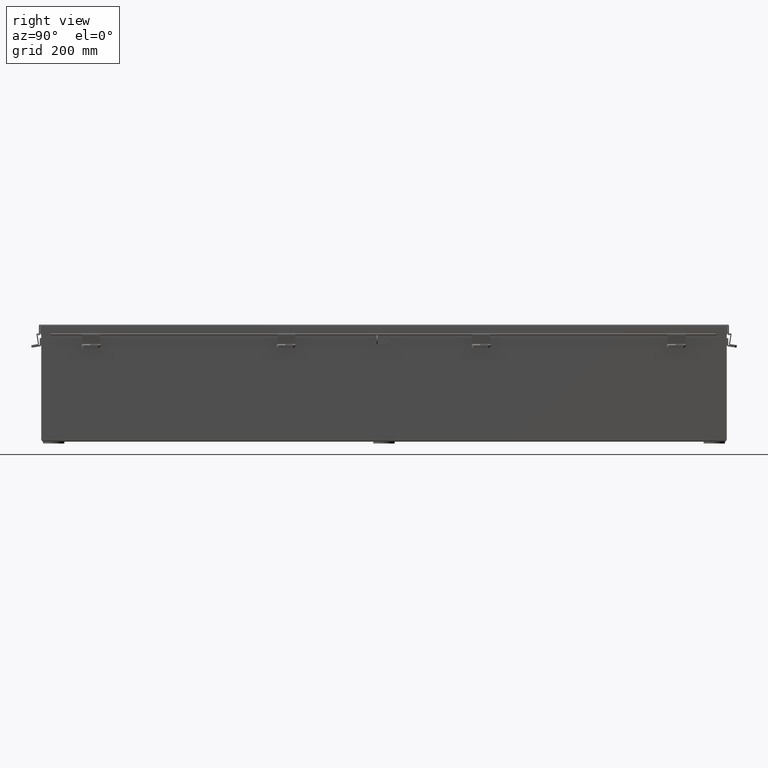
[diagram: clean part render]
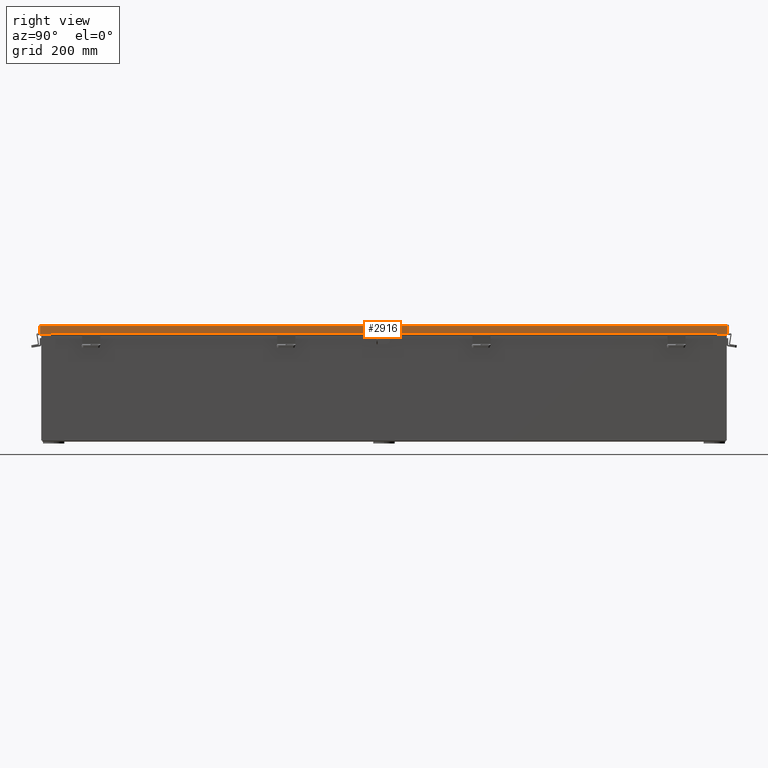
[diagram: same view with one face highlighted and labeled with its STEP entity id]
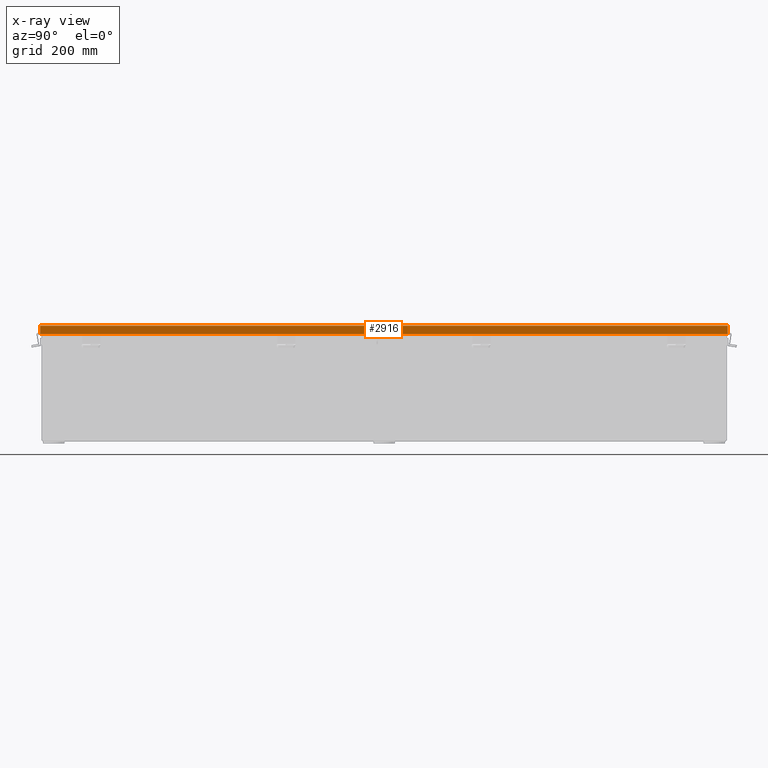
[diagram: x-ray of the same camera — body ghosted, the highlighted face saturated]
A machine part, right view. The second image highlights one B-rep face of the part: STEP entity #2916.
The next image is the same camera in x-ray: the body ghosted, the highlighted face saturated — about 0% of this face is hidden behind the body in this view.
In plain terms, the highlighted planar face has unit normal (-1, 0, -0).
Its self-contained STEP definition (entity closure, byte-faithful):
#23 = DIRECTION ( 'NONE',  ( 8.167918082642967100E-031, 1.000000000000000000, 2.958228394578794300E-031 ) ) ;
#1107 = VECTOR ( 'NONE', #16526, 39.37007874015748100 ) ;
#1691 = LINE ( 'NONE', #4420, #22312 ) ;
#1967 = LINE ( 'NONE', #12692, #1107 ) ;
#2052 = CARTESIAN_POINT ( 'NONE',  ( -4.156249999999998200, -2.134256245050205600E-018, 0.6122999999999994000 ) ) ;
#2061 = DIRECTION ( 'NONE',  ( -8.167918082642967100E-031, -1.000000000000000000, -2.958228394578794300E-031 ) ) ;
#2173 = EDGE_CURVE ( 'NONE', #2373, #4963, #28156, .T. ) ;
#2373 = VERTEX_POINT ( 'NONE', #30448 ) ;
#2558 = DIRECTION ( 'NONE',  ( -1.051488783017914100E-013, 2.218671295934096100E-031, 1.000000000000000000 ) ) ;
#2916 = ADVANCED_FACE ( 'NONE', ( #20163 ), #30931, .F. ) ;
#4085 = ORIENTED_EDGE ( 'NONE', *, *, #9067, .F. ) ;
#4376 = VECTOR ( 'NONE', #10524, 39.37007874015748100 ) ;
#4420 = CARTESIAN_POINT ( 'NONE',  ( -4.156249999999995600, 24.07447893218808600, 0.0000000000000000000 ) ) ;
#4501 = ORIENTED_EDGE ( 'NONE', *, *, #2173, .T. ) ;
#4963 = VERTEX_POINT ( 'NONE', #27843 ) ;
#5030 = VERTEX_POINT ( 'NONE', #25144 ) ;
#5718 = VECTOR ( 'NONE', #8082, 39.37007874015748100 ) ;
#7093 = ORIENTED_EDGE ( 'NONE', *, *, #27903, .F. ) ;
#7615 = VERTEX_POINT ( 'NONE', #25315 ) ;
#8082 = DIRECTION ( 'NONE',  ( 8.167918082642967100E-031, 1.000000000000000000, 2.958228394578794300E-031 ) ) ;
#8814 = AXIS2_PLACEMENT_3D ( 'NONE', #14443, #29444, #28215 ) ;
#9067 = EDGE_CURVE ( 'NONE', #24469, #30160, #1967, .T. ) ;
#9166 = ORIENTED_EDGE ( 'NONE', *, *, #16273, .F. ) ;
#10045 = CARTESIAN_POINT ( 'NONE',  ( -4.156249999999995600, -24.07447893218818200, 0.01299999999999792100 ) ) ;
#10458 = CARTESIAN_POINT ( 'NONE',  ( -4.156250000000000900, 23.32447893218808600, 0.6122999999999960700 ) ) ;
#10523 = DIRECTION ( 'NONE',  ( -3.569293475308526100E-015, 7.642090019328552700E-031, 1.000000000000000000 ) ) ;
#10524 = DIRECTION ( 'NONE',  ( 2.803970088048028900E-013, -2.958228394578795100E-031, -1.000000000000000000 ) ) ;
#10665 = CARTESIAN_POINT ( 'NONE',  ( -4.156249999999998200, -2.134256245050205600E-018, 0.6122999999999994000 ) ) ;
#10778 = CARTESIAN_POINT ( 'NONE',  ( -4.156249999999998200, -24.07447893218817800, 0.6122999999999994000 ) ) ;
#11043 = LINE ( 'NONE', #22697, #11924 ) ;
#11186 = ORIENTED_EDGE ( 'NONE', *, *, #26193, .F. ) ;
#11691 = EDGE_CURVE ( 'NONE', #27975, #7615, #21800, .T. ) ;
#11924 = VECTOR ( 'NONE', #2061, 39.37007874015748100 ) ;
#12692 = CARTESIAN_POINT ( 'NONE',  ( -4.156249999999995600, 24.15624999999995400, 0.01300000000000010700 ) ) ;
#14443 = CARTESIAN_POINT ( 'NONE',  ( -4.156249999999995600, 0.0000000000000000000, -1.529834876451987200E-014 ) ) ;
#14673 = LINE ( 'NONE', #22576, #22154 ) ;
#14871 = EDGE_CURVE ( 'NONE', #31840, #5030, #11043, .T. ) ;
#16273 = EDGE_CURVE ( 'NONE', #2373, #31840, #17528, .T. ) ;
#16526 = DIRECTION ( 'NONE',  ( 7.372621682444124500E-031, 1.000000000000000000, 2.261814638997611900E-017 ) ) ;
#17528 = LINE ( 'NONE', #10458, #4376 ) ;
#20163 = FACE_OUTER_BOUND ( 'NONE', #30082, .T. ) ;
#20689 = LINE ( 'NONE', #22204, #27306 ) ;
#20919 = VECTOR ( 'NONE', #23, 39.37007874015748100 ) ;
#21800 = LINE ( 'NONE', #2052, #20919 ) ;
#22154 = VECTOR ( 'NONE', #28120, 39.37007874015748100 ) ;
#22204 = CARTESIAN_POINT ( 'NONE',  ( -4.156250000000000900, -23.32447893218817800, 0.5967115427319000800 ) ) ;
#22312 = VECTOR ( 'NONE', #10523, 39.37007874015748100 ) ;
#22576 = CARTESIAN_POINT ( 'NONE',  ( -4.156249999999995600, -24.07447893218818200, -1.529834876451987200E-014 ) ) ;
#22697 = CARTESIAN_POINT ( 'NONE',  ( -4.156250000000000900, 23.32447893218808900, 0.5967115427318761000 ) ) ;
#24469 = VERTEX_POINT ( 'NONE', #10045 ) ;
#25144 = CARTESIAN_POINT ( 'NONE',  ( -4.156250000000002700, -23.32447893218817800, 0.5967115427319000800 ) ) ;
#25315 = CARTESIAN_POINT ( 'NONE',  ( -4.156249999999998200, -23.32447893218817500, 0.6123000000000233800 ) ) ;
#26193 = EDGE_CURVE ( 'NONE', #5030, #7615, #20689, .T. ) ;
#26638 = ORIENTED_EDGE ( 'NONE', *, *, #14871, .F. ) ;
#27306 = VECTOR ( 'NONE', #2558, 39.37007874015748100 ) ;
#27843 = CARTESIAN_POINT ( 'NONE',  ( -4.156249999999998200, 24.07447893218808600, 0.6123000000000005100 ) ) ;
#27903 = EDGE_CURVE ( 'NONE', #30160, #4963, #1691, .T. ) ;
#27975 = VERTEX_POINT ( 'NONE', #10778 ) ;
#28120 = DIRECTION ( 'NONE',  ( -3.569293475308526100E-015, 7.642090019328552700E-031, 1.000000000000000000 ) ) ;
#28156 = LINE ( 'NONE', #10665, #5718 ) ;
#28215 = DIRECTION ( 'NONE',  ( 3.569293475308526100E-015, -7.642090019328552700E-031, -1.000000000000000000 ) ) ;
#29444 = DIRECTION ( 'NONE',  ( 1.000000000000000000, 8.211478774540456900E-031, 3.569293475308526100E-015 ) ) ;
#30082 = EDGE_LOOP ( 'NONE', ( #9166, #4501, #7093, #4085, #30888, #35327, #11186, #26638 ) ) ;
#30160 = VERTEX_POINT ( 'NONE', #35272 ) ;
#30448 = CARTESIAN_POINT ( 'NONE',  ( -4.156249999999998200, 23.32447893218808600, 0.6122999999999982900 ) ) ;
#30888 = ORIENTED_EDGE ( 'NONE', *, *, #34318, .T. ) ;
#30931 = PLANE ( 'NONE',  #8814 ) ;
#31840 = VERTEX_POINT ( 'NONE', #34371 ) ;
#34318 = EDGE_CURVE ( 'NONE', #24469, #27975, #14673, .T. ) ;
#34371 = CARTESIAN_POINT ( 'NONE',  ( -4.156250000000002700, 23.32447893218808600, 0.5967115427318761000 ) ) ;
#35272 = CARTESIAN_POINT ( 'NONE',  ( -4.156249999999995600, 24.07447893218808600, 0.01300000000000010700 ) ) ;
#35327 = ORIENTED_EDGE ( 'NONE', *, *, #11691, .T. ) ;